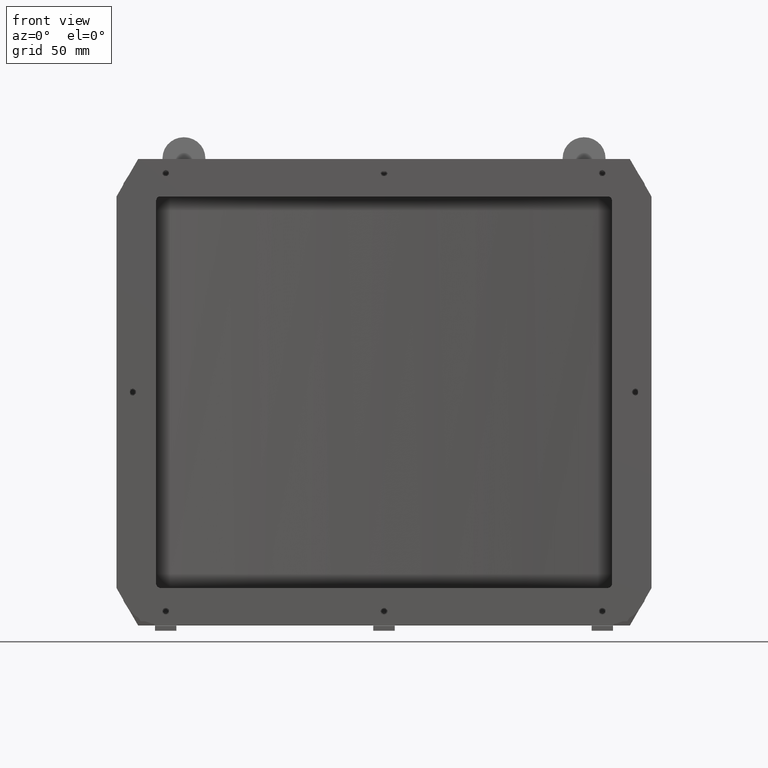
[diagram: clean part render]
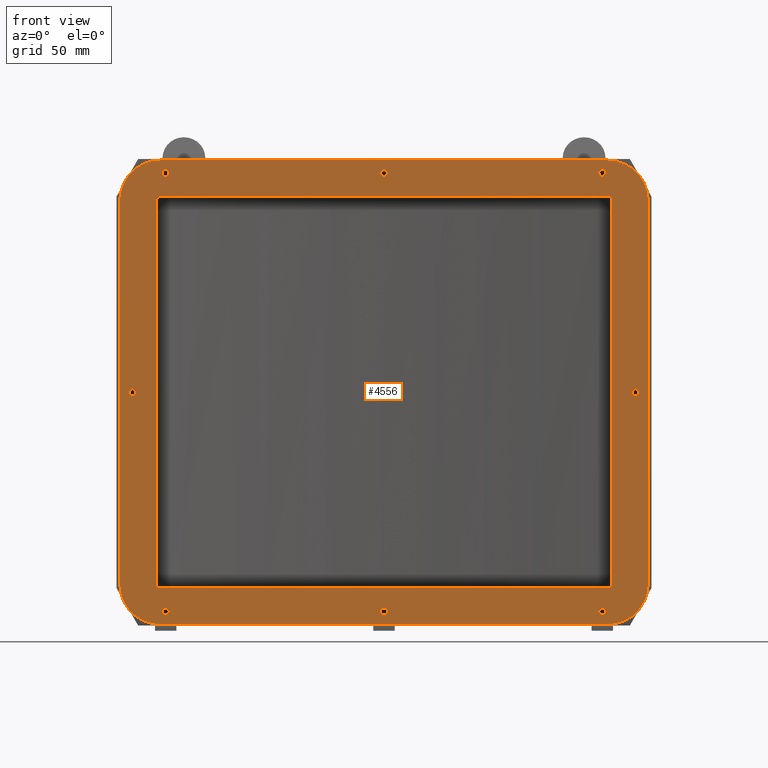
[diagram: same view with one face highlighted and labeled with its STEP entity id]
A machine part, front view. The second image highlights one B-rep face of the part: STEP entity #4556.
In plain terms, the highlighted planar face has unit normal (0, -1, 0).
Its self-contained STEP definition (entity closure, byte-faithful):
#36 = DIRECTION ( 'NONE',  ( 0.0000000000000000000, 0.0000000000000000000, -1.000000000000000000 ) ) ;
#37 = DIRECTION ( 'NONE',  ( 0.0000000000000000000, -1.000000000000000000, 0.0000000000000000000 ) ) ;
#38 = CARTESIAN_POINT ( 'NONE',  ( 101.9999999999999900, -6.000000000000000000, -102.5000000000000000 ) ) ;
#39 = AXIS2_PLACEMENT_3D ( 'NONE', #38, #37, #36 ) ;
#40 = CIRCLE ( 'NONE', #39, 1.600000000000004100 ) ;
#41 = DIRECTION ( 'NONE',  ( 0.0000000000000000000, 0.0000000000000000000, 1.000000000000000000 ) ) ;
#42 = DIRECTION ( 'NONE',  ( -0.0000000000000000000, -1.000000000000000000, -0.0000000000000000000 ) ) ;
#43 = CARTESIAN_POINT ( 'NONE',  ( 117.5000000000000000, -6.000000000000000000, 0.0000000000000000000 ) ) ;
#44 = AXIS2_PLACEMENT_3D ( 'NONE', #43, #42, #41 ) ;
#45 = CIRCLE ( 'NONE', #44, 1.600000000000005200 ) ;
#46 = DIRECTION ( 'NONE',  ( 0.0000000000000000000, 0.0000000000000000000, -1.000000000000000000 ) ) ;
#47 = DIRECTION ( 'NONE',  ( 0.0000000000000000000, -1.000000000000000000, 0.0000000000000000000 ) ) ;
#48 = CARTESIAN_POINT ( 'NONE',  ( -117.5000000000000000, -6.000000000000000000, -2.877824931482586600E-014 ) ) ;
#49 = AXIS2_PLACEMENT_3D ( 'NONE', #48, #47, #46 ) ;
#50 = DIRECTION ( 'NONE',  ( 0.0000000000000000000, -0.0000000000000000000, -1.000000000000000000 ) ) ;
#51 = DIRECTION ( 'NONE',  ( 0.0000000000000000000, -1.000000000000000000, 0.0000000000000000000 ) ) ;
#52 = CARTESIAN_POINT ( 'NONE',  ( -104.5000000000000100, -6.000000000000000000, -89.50000000000001400 ) ) ;
#53 = AXIS2_PLACEMENT_3D ( 'NONE', #52, #51, #50 ) ;
#54 = CIRCLE ( 'NONE', #49, 1.600000000000005200 ) ;
#55 = PLANE ( 'NONE',  #53 ) ;
#56 = FACE_BOUND ( 'NONE', #5145, .T. ) ;
#57 = FACE_OUTER_BOUND ( 'NONE', #5407, .T. ) ;
#58 = FACE_BOUND ( 'NONE', #5403, .T. ) ;
#59 = FACE_BOUND ( 'NONE', #5095, .T. ) ;
#60 = FACE_BOUND ( 'NONE', #5421, .T. ) ;
#61 = FACE_BOUND ( 'NONE', #5417, .T. ) ;
#62 = FACE_BOUND ( 'NONE', #5413, .T. ) ;
#63 = FACE_BOUND ( 'NONE', #4564, .T. ) ;
#64 = FACE_BOUND ( 'NONE', #4560, .T. ) ;
#65 = FACE_BOUND ( 'NONE', #5162, .T. ) ;
#148 = CARTESIAN_POINT ( 'NONE',  ( 104.5000000000000100, -6.000000000000000000, 108.5000000000000100 ) ) ;
#2892 = DIRECTION ( 'NONE',  ( -1.000000000000000000, -0.0000000000000000000, -0.0000000000000000000 ) ) ;
#2899 = CARTESIAN_POINT ( 'NONE',  ( 104.5000000000000100, -6.000000000000000000, -108.5000000000000100 ) ) ;
#2944 = VECTOR ( 'NONE', #2892, 1000.000000000000000 ) ;
#2945 = CARTESIAN_POINT ( 'NONE',  ( -104.5000000000000100, -6.000000000000000000, -108.5000000000000100 ) ) ;
#2946 = LINE ( 'NONE', #2945, #2944 ) ;
#3105 = CARTESIAN_POINT ( 'NONE',  ( 123.5000000000000100, -6.000000000000000000, -89.50000000000000000 ) ) ;
#3144 = CIRCLE ( 'NONE', #3179, 19.00000000000000400 ) ;
#3161 = DIRECTION ( 'NONE',  ( 0.0000000000000000000, 0.0000000000000000000, -1.000000000000000000 ) ) ;
#3162 = CARTESIAN_POINT ( 'NONE',  ( -104.5000000000000100, -6.000000000000000000, -108.5000000000000100 ) ) ;
#3165 = CARTESIAN_POINT ( 'NONE',  ( -104.5000000000000100, -6.000000000000000000, -89.50000000000001400 ) ) ;
#3179 = AXIS2_PLACEMENT_3D ( 'NONE', #3165, #3180, #3161 ) ;
#3180 = DIRECTION ( 'NONE',  ( -0.0000000000000000000, 1.000000000000000000, -0.0000000000000000000 ) ) ;
#3188 = CARTESIAN_POINT ( 'NONE',  ( -123.5000000000000100, -6.000000000000000000, -89.50000000000000000 ) ) ;
#4119 = EDGE_CURVE ( 'NONE', #4462, #4120, #6534, .T. ) ;
#4120 = VERTEX_POINT ( 'NONE', #6529 ) ;
#4131 = VERTEX_POINT ( 'NONE', #6425 ) ;
#4133 = EDGE_CURVE ( 'NONE', #4131, #4134, #6558, .T. ) ;
#4134 = VERTEX_POINT ( 'NONE', #6536 ) ;
#4135 = EDGE_CURVE ( 'NONE', #4172, #4136, #6535, .T. ) ;
#4136 = VERTEX_POINT ( 'NONE', #6554 ) ;
#4160 = EDGE_CURVE ( 'NONE', #4300, #4161, #6567, .T. ) ;
#4161 = VERTEX_POINT ( 'NONE', #6562 ) ;
#4172 = VERTEX_POINT ( 'NONE', #6590 ) ;
#4182 = VERTEX_POINT ( 'NONE', #6629 ) ;
#4184 = EDGE_CURVE ( 'NONE', #4182, #4185, #6628, .T. ) ;
#4185 = VERTEX_POINT ( 'NONE', #6623 ) ;
#4277 = VERTEX_POINT ( 'NONE', #6770 ) ;
#4279 = EDGE_CURVE ( 'NONE', #4277, #4280, #6769, .T. ) ;
#4280 = VERTEX_POINT ( 'NONE', #6822 ) ;
#4286 = VERTEX_POINT ( 'NONE', #6816 ) ;
#4288 = EDGE_CURVE ( 'NONE', #4286, #4289, #6851, .T. ) ;
#4289 = VERTEX_POINT ( 'NONE', #6846 ) ;
#4300 = VERTEX_POINT ( 'NONE', #6873 ) ;
#4367 = VERTEX_POINT ( 'NONE', #7115 ) ;
#4369 = EDGE_CURVE ( 'NONE', #4367, #4370, #7199, .T. ) ;
#4370 = VERTEX_POINT ( 'NONE', #7216 ) ;
#4462 = VERTEX_POINT ( 'NONE', #7191 ) ;
#4486 = VERTEX_POINT ( 'NONE', #148 ) ;
#4494 = VERTEX_POINT ( 'NONE', #8609 ) ;
#4496 = EDGE_CURVE ( 'NONE', #4494, #5396, #8615, .T. ) ;
#4556 = ADVANCED_FACE ( 'NONE', ( #65, #64, #63, #62, #61, #60, #59, #58, #57, #56 ), #55, .T. ) ;
#4557 = ORIENTED_EDGE ( 'NONE', *, *, #4558, .F. ) ;
#4558 = EDGE_CURVE ( 'NONE', #4289, #4286, #54, .T. ) ;
#4559 = ORIENTED_EDGE ( 'NONE', *, *, #4288, .F. ) ;
#4560 = EDGE_LOOP ( 'NONE', ( #4561, #4563 ) ) ;
#4561 = ORIENTED_EDGE ( 'NONE', *, *, #4562, .F. ) ;
#4562 = EDGE_CURVE ( 'NONE', #4161, #4300, #45, .T. ) ;
#4563 = ORIENTED_EDGE ( 'NONE', *, *, #4160, .F. ) ;
#4564 = EDGE_LOOP ( 'NONE', ( #4565, #4567 ) ) ;
#4565 = ORIENTED_EDGE ( 'NONE', *, *, #4566, .F. ) ;
#4566 = EDGE_CURVE ( 'NONE', #4136, #4172, #40, .T. ) ;
#4567 = ORIENTED_EDGE ( 'NONE', *, *, #4135, .F. ) ;
#4581 = VERTEX_POINT ( 'NONE', #2899 ) ;
#4616 = EDGE_CURVE ( 'NONE', #4581, #4711, #2946, .T. ) ;
#4677 = VERTEX_POINT ( 'NONE', #3105 ) ;
#4711 = VERTEX_POINT ( 'NONE', #3162 ) ;
#4713 = EDGE_CURVE ( 'NONE', #4711, #4714, #3144, .T. ) ;
#4714 = VERTEX_POINT ( 'NONE', #3188 ) ;
#5095 = EDGE_LOOP ( 'NONE', ( #5400, #5402 ) ) ;
#5143 = ORIENTED_EDGE ( 'NONE', *, *, #4496, .F. ) ;
#5144 = ORIENTED_EDGE ( 'NONE', *, *, #5160, .F. ) ;
#5145 = EDGE_LOOP ( 'NONE', ( #5371, #5375, #5378, #5193, #5196, #5199, #5202, #5205 ) ) ;
#5157 = ORIENTED_EDGE ( 'NONE', *, *, #5387, .F. ) ;
#5160 = EDGE_CURVE ( 'NONE', #4714, #4494, #7758, .T. ) ;
#5162 = EDGE_LOOP ( 'NONE', ( #4557, #4559 ) ) ;
#5164 = EDGE_CURVE ( 'NONE', #4677, #4581, #7754, .T. ) ;
#5172 = EDGE_CURVE ( 'NONE', #5177, #4677, #7798, .T. ) ;
#5177 = VERTEX_POINT ( 'NONE', #7790 ) ;
#5193 = ORIENTED_EDGE ( 'NONE', *, *, #5194, .T. ) ;
#5194 = EDGE_CURVE ( 'NONE', #5380, #5195, #7829, .T. ) ;
#5195 = VERTEX_POINT ( 'NONE', #7825 ) ;
#5196 = ORIENTED_EDGE ( 'NONE', *, *, #5197, .T. ) ;
#5197 = EDGE_CURVE ( 'NONE', #5195, #5198, #7824, .T. ) ;
#5198 = VERTEX_POINT ( 'NONE', #7819 ) ;
#5199 = ORIENTED_EDGE ( 'NONE', *, *, #5200, .T. ) ;
#5200 = EDGE_CURVE ( 'NONE', #5198, #5201, #7818, .T. ) ;
#5201 = VERTEX_POINT ( 'NONE', #7814 ) ;
#5202 = ORIENTED_EDGE ( 'NONE', *, *, #5203, .T. ) ;
#5203 = EDGE_CURVE ( 'NONE', #5201, #5204, #7813, .T. ) ;
#5204 = VERTEX_POINT ( 'NONE', #7875 ) ;
#5205 = ORIENTED_EDGE ( 'NONE', *, *, #5206, .T. ) ;
#5206 = EDGE_CURVE ( 'NONE', #5204, #5373, #7874, .T. ) ;
#5357 = ORIENTED_EDGE ( 'NONE', *, *, #5398, .F. ) ;
#5371 = ORIENTED_EDGE ( 'NONE', *, *, #5372, .T. ) ;
#5372 = EDGE_CURVE ( 'NONE', #5373, #5374, #5617, .T. ) ;
#5373 = VERTEX_POINT ( 'NONE', #5612 ) ;
#5374 = VERTEX_POINT ( 'NONE', #5611 ) ;
#5375 = ORIENTED_EDGE ( 'NONE', *, *, #5376, .T. ) ;
#5376 = EDGE_CURVE ( 'NONE', #5374, #5377, #5672, .T. ) ;
#5377 = VERTEX_POINT ( 'NONE', #5668 ) ;
#5378 = ORIENTED_EDGE ( 'NONE', *, *, #5379, .T. ) ;
#5379 = EDGE_CURVE ( 'NONE', #5377, #5380, #5667, .T. ) ;
#5380 = VERTEX_POINT ( 'NONE', #5662 ) ;
#5387 = EDGE_CURVE ( 'NONE', #4486, #5177, #5649, .T. ) ;
#5396 = VERTEX_POINT ( 'NONE', #5691 ) ;
#5398 = EDGE_CURVE ( 'NONE', #5396, #4486, #5690, .T. ) ;
#5400 = ORIENTED_EDGE ( 'NONE', *, *, #5401, .F. ) ;
#5401 = EDGE_CURVE ( 'NONE', #4134, #4131, #5686, .T. ) ;
#5402 = ORIENTED_EDGE ( 'NONE', *, *, #4133, .F. ) ;
#5403 = EDGE_LOOP ( 'NONE', ( #5404, #5406 ) ) ;
#5404 = ORIENTED_EDGE ( 'NONE', *, *, #5405, .F. ) ;
#5405 = EDGE_CURVE ( 'NONE', #4120, #4462, #5681, .T. ) ;
#5406 = ORIENTED_EDGE ( 'NONE', *, *, #4119, .F. ) ;
#5407 = EDGE_LOOP ( 'NONE', ( #5408, #5409, #5410, #5411, #5157, #5357, #5143, #5144 ) ) ;
#5408 = ORIENTED_EDGE ( 'NONE', *, *, #4713, .F. ) ;
#5409 = ORIENTED_EDGE ( 'NONE', *, *, #4616, .F. ) ;
#5410 = ORIENTED_EDGE ( 'NONE', *, *, #5164, .F. ) ;
#5411 = ORIENTED_EDGE ( 'NONE', *, *, #5172, .F. ) ;
#5413 = EDGE_LOOP ( 'NONE', ( #5414, #5416 ) ) ;
#5414 = ORIENTED_EDGE ( 'NONE', *, *, #5415, .F. ) ;
#5415 = EDGE_CURVE ( 'NONE', #4370, #4367, #5734, .T. ) ;
#5416 = ORIENTED_EDGE ( 'NONE', *, *, #4369, .F. ) ;
#5417 = EDGE_LOOP ( 'NONE', ( #5418, #5420 ) ) ;
#5418 = ORIENTED_EDGE ( 'NONE', *, *, #5419, .F. ) ;
#5419 = EDGE_CURVE ( 'NONE', #4185, #4182, #5729, .T. ) ;
#5420 = ORIENTED_EDGE ( 'NONE', *, *, #4184, .F. ) ;
#5421 = EDGE_LOOP ( 'NONE', ( #5422, #5424 ) ) ;
#5422 = ORIENTED_EDGE ( 'NONE', *, *, #5423, .F. ) ;
#5423 = EDGE_CURVE ( 'NONE', #4280, #4277, #5724, .T. ) ;
#5424 = ORIENTED_EDGE ( 'NONE', *, *, #4279, .F. ) ;
#5611 = CARTESIAN_POINT ( 'NONE',  ( -106.5000000000000100, -6.000000000000000000, -89.50000000000001400 ) ) ;
#5612 = CARTESIAN_POINT ( 'NONE',  ( -104.5000000000000100, -6.000000000000000000, -91.50000000000000000 ) ) ;
#5613 = DIRECTION ( 'NONE',  ( 0.0000000000000000000, 0.0000000000000000000, -1.000000000000000000 ) ) ;
#5614 = DIRECTION ( 'NONE',  ( -0.0000000000000000000, 1.000000000000000000, -0.0000000000000000000 ) ) ;
#5615 = CARTESIAN_POINT ( 'NONE',  ( -104.5000000000000100, -6.000000000000000000, -89.50000000000001400 ) ) ;
#5616 = AXIS2_PLACEMENT_3D ( 'NONE', #5615, #5614, #5613 ) ;
#5617 = CIRCLE ( 'NONE', #5616, 1.999999999999988000 ) ;
#5645 = DIRECTION ( 'NONE',  ( 0.0000000000000000000, 0.0000000000000000000, -1.000000000000000000 ) ) ;
#5646 = DIRECTION ( 'NONE',  ( -0.0000000000000000000, 1.000000000000000000, -0.0000000000000000000 ) ) ;
#5647 = CARTESIAN_POINT ( 'NONE',  ( 104.5000000000000100, -6.000000000000000000, 89.50000000000001400 ) ) ;
#5648 = AXIS2_PLACEMENT_3D ( 'NONE', #5647, #5646, #5645 ) ;
#5649 = CIRCLE ( 'NONE', #5648, 19.00000000000000400 ) ;
#5662 = CARTESIAN_POINT ( 'NONE',  ( -104.5000000000000100, -6.000000000000000000, 91.50000000000001400 ) ) ;
#5663 = DIRECTION ( 'NONE',  ( 0.0000000000000000000, 0.0000000000000000000, -1.000000000000000000 ) ) ;
#5664 = DIRECTION ( 'NONE',  ( -0.0000000000000000000, 1.000000000000000000, -0.0000000000000000000 ) ) ;
#5665 = CARTESIAN_POINT ( 'NONE',  ( -104.5000000000000100, -6.000000000000000000, 89.50000000000001400 ) ) ;
#5666 = AXIS2_PLACEMENT_3D ( 'NONE', #5665, #5664, #5663 ) ;
#5667 = CIRCLE ( 'NONE', #5666, 2.000000000000001800 ) ;
#5668 = CARTESIAN_POINT ( 'NONE',  ( -106.5000000000000100, -6.000000000000000000, 89.50000000000001400 ) ) ;
#5669 = DIRECTION ( 'NONE',  ( 0.0000000000000000000, 0.0000000000000000000, 1.000000000000000000 ) ) ;
#5670 = VECTOR ( 'NONE', #5669, 1000.000000000000000 ) ;
#5671 = CARTESIAN_POINT ( 'NONE',  ( -106.5000000000000100, -6.000000000000000000, -89.50000000000001400 ) ) ;
#5672 = LINE ( 'NONE', #5671, #5670 ) ;
#5677 = DIRECTION ( 'NONE',  ( 0.0000000000000000000, 0.0000000000000000000, -1.000000000000000000 ) ) ;
#5678 = DIRECTION ( 'NONE',  ( 0.0000000000000000000, -1.000000000000000000, 0.0000000000000000000 ) ) ;
#5679 = CARTESIAN_POINT ( 'NONE',  ( 1.255221512667936500E-014, -6.000000000000000000, -102.5000000000000000 ) ) ;
#5680 = AXIS2_PLACEMENT_3D ( 'NONE', #5679, #5678, #5677 ) ;
#5681 = CIRCLE ( 'NONE', #5680, 1.600000000000004100 ) ;
#5682 = DIRECTION ( 'NONE',  ( 0.0000000000000000000, 0.0000000000000000000, 1.000000000000000000 ) ) ;
#5683 = DIRECTION ( 'NONE',  ( -0.0000000000000000000, -1.000000000000000000, -0.0000000000000000000 ) ) ;
#5684 = CARTESIAN_POINT ( 'NONE',  ( 1.255221512667936500E-014, -6.000000000000000000, 102.5000000000000000 ) ) ;
#5685 = AXIS2_PLACEMENT_3D ( 'NONE', #5684, #5683, #5682 ) ;
#5686 = CIRCLE ( 'NONE', #5685, 1.600000000000004100 ) ;
#5687 = DIRECTION ( 'NONE',  ( 1.000000000000000000, 0.0000000000000000000, 0.0000000000000000000 ) ) ;
#5688 = VECTOR ( 'NONE', #5687, 1000.000000000000000 ) ;
#5689 = CARTESIAN_POINT ( 'NONE',  ( -104.5000000000000100, -6.000000000000000000, 108.5000000000000100 ) ) ;
#5690 = LINE ( 'NONE', #5689, #5688 ) ;
#5691 = CARTESIAN_POINT ( 'NONE',  ( -104.5000000000000100, -6.000000000000000000, 108.5000000000000100 ) ) ;
#5720 = DIRECTION ( 'NONE',  ( 0.0000000000000000000, 0.0000000000000000000, 1.000000000000000000 ) ) ;
#5721 = DIRECTION ( 'NONE',  ( -0.0000000000000000000, -1.000000000000000000, -0.0000000000000000000 ) ) ;
#5722 = CARTESIAN_POINT ( 'NONE',  ( 101.9999999999999900, -6.000000000000000000, 102.5000000000000000 ) ) ;
#5723 = AXIS2_PLACEMENT_3D ( 'NONE', #5722, #5721, #5720 ) ;
#5724 = CIRCLE ( 'NONE', #5723, 1.600000000000004100 ) ;
#5725 = DIRECTION ( 'NONE',  ( 0.0000000000000000000, 0.0000000000000000000, 1.000000000000000000 ) ) ;
#5726 = DIRECTION ( 'NONE',  ( -0.0000000000000000000, -1.000000000000000000, -0.0000000000000000000 ) ) ;
#5727 = CARTESIAN_POINT ( 'NONE',  ( -102.0000000000000100, -6.000000000000000000, 102.4999999999999700 ) ) ;
#5728 = AXIS2_PLACEMENT_3D ( 'NONE', #5727, #5726, #5725 ) ;
#5729 = CIRCLE ( 'NONE', #5728, 1.600000000000004100 ) ;
#5730 = DIRECTION ( 'NONE',  ( 0.0000000000000000000, 0.0000000000000000000, -1.000000000000000000 ) ) ;
#5731 = DIRECTION ( 'NONE',  ( 0.0000000000000000000, -1.000000000000000000, 0.0000000000000000000 ) ) ;
#5732 = CARTESIAN_POINT ( 'NONE',  ( -102.0000000000000100, -6.000000000000000000, -102.4999999999999700 ) ) ;
#5733 = AXIS2_PLACEMENT_3D ( 'NONE', #5732, #5731, #5730 ) ;
#5734 = CIRCLE ( 'NONE', #5733, 1.600000000000004100 ) ;
#6425 = CARTESIAN_POINT ( 'NONE',  ( 1.274815214329094500E-014, -6.000000000000000000, 104.0999999999999900 ) ) ;
#6529 = CARTESIAN_POINT ( 'NONE',  ( 1.255221512667936500E-014, -6.000000000000000000, -104.0999999999999900 ) ) ;
#6530 = DIRECTION ( 'NONE',  ( 0.0000000000000000000, 0.0000000000000000000, -1.000000000000000000 ) ) ;
#6531 = DIRECTION ( 'NONE',  ( 0.0000000000000000000, -1.000000000000000000, 0.0000000000000000000 ) ) ;
#6532 = CARTESIAN_POINT ( 'NONE',  ( 1.255221512667936500E-014, -6.000000000000000000, -102.5000000000000000 ) ) ;
#6533 = AXIS2_PLACEMENT_3D ( 'NONE', #6532, #6531, #6530 ) ;
#6534 = CIRCLE ( 'NONE', #6533, 1.600000000000004100 ) ;
#6535 = CIRCLE ( 'NONE', #6553, 1.600000000000004100 ) ;
#6536 = CARTESIAN_POINT ( 'NONE',  ( 1.255221512667936500E-014, -6.000000000000000000, 100.8999999999999900 ) ) ;
#6551 = DIRECTION ( 'NONE',  ( 0.0000000000000000000, -1.000000000000000000, 0.0000000000000000000 ) ) ;
#6552 = CARTESIAN_POINT ( 'NONE',  ( 101.9999999999999900, -6.000000000000000000, -102.5000000000000000 ) ) ;
#6553 = AXIS2_PLACEMENT_3D ( 'NONE', #6552, #6551, #6555 ) ;
#6554 = CARTESIAN_POINT ( 'NONE',  ( 101.9999999999999900, -6.000000000000000000, -104.0999999999999900 ) ) ;
#6555 = DIRECTION ( 'NONE',  ( 0.0000000000000000000, 0.0000000000000000000, -1.000000000000000000 ) ) ;
#6556 = DIRECTION ( 'NONE',  ( -0.0000000000000000000, -1.000000000000000000, -0.0000000000000000000 ) ) ;
#6557 = CARTESIAN_POINT ( 'NONE',  ( 1.255221512667936500E-014, -6.000000000000000000, 102.5000000000000000 ) ) ;
#6558 = CIRCLE ( 'NONE', #6649, 1.600000000000004100 ) ;
#6562 = CARTESIAN_POINT ( 'NONE',  ( 117.5000000000000000, -6.000000000000000000, -1.600000000000005200 ) ) ;
#6563 = DIRECTION ( 'NONE',  ( 0.0000000000000000000, 0.0000000000000000000, 1.000000000000000000 ) ) ;
#6564 = DIRECTION ( 'NONE',  ( -0.0000000000000000000, -1.000000000000000000, -0.0000000000000000000 ) ) ;
#6565 = CARTESIAN_POINT ( 'NONE',  ( 117.5000000000000000, -6.000000000000000000, 0.0000000000000000000 ) ) ;
#6566 = AXIS2_PLACEMENT_3D ( 'NONE', #6565, #6564, #6563 ) ;
#6567 = CIRCLE ( 'NONE', #6566, 1.600000000000005200 ) ;
#6590 = CARTESIAN_POINT ( 'NONE',  ( 101.9999999999999900, -6.000000000000000000, -100.8999999999999900 ) ) ;
#6623 = CARTESIAN_POINT ( 'NONE',  ( -102.0000000000000100, -6.000000000000000000, 100.8999999999999600 ) ) ;
#6624 = DIRECTION ( 'NONE',  ( 0.0000000000000000000, 0.0000000000000000000, 1.000000000000000000 ) ) ;
#6625 = DIRECTION ( 'NONE',  ( -0.0000000000000000000, -1.000000000000000000, -0.0000000000000000000 ) ) ;
#6626 = CARTESIAN_POINT ( 'NONE',  ( -102.0000000000000100, -6.000000000000000000, 102.4999999999999700 ) ) ;
#6627 = AXIS2_PLACEMENT_3D ( 'NONE', #6626, #6625, #6624 ) ;
#6628 = CIRCLE ( 'NONE', #6627, 1.600000000000004100 ) ;
#6629 = CARTESIAN_POINT ( 'NONE',  ( -102.0000000000000100, -6.000000000000000000, 104.0999999999999700 ) ) ;
#6649 = AXIS2_PLACEMENT_3D ( 'NONE', #6557, #6556, #6662 ) ;
#6662 = DIRECTION ( 'NONE',  ( 0.0000000000000000000, 0.0000000000000000000, 1.000000000000000000 ) ) ;
#6766 = DIRECTION ( 'NONE',  ( -0.0000000000000000000, -1.000000000000000000, -0.0000000000000000000 ) ) ;
#6767 = CARTESIAN_POINT ( 'NONE',  ( 101.9999999999999900, -6.000000000000000000, 102.5000000000000000 ) ) ;
#6768 = AXIS2_PLACEMENT_3D ( 'NONE', #6767, #6766, #6823 ) ;
#6769 = CIRCLE ( 'NONE', #6768, 1.600000000000004100 ) ;
#6770 = CARTESIAN_POINT ( 'NONE',  ( 101.9999999999999900, -6.000000000000000000, 104.0999999999999900 ) ) ;
#6816 = CARTESIAN_POINT ( 'NONE',  ( -117.5000000000000000, -6.000000000000000000, 1.599999999999976600 ) ) ;
#6822 = CARTESIAN_POINT ( 'NONE',  ( 101.9999999999999900, -6.000000000000000000, 100.8999999999999900 ) ) ;
#6823 = DIRECTION ( 'NONE',  ( 0.0000000000000000000, 0.0000000000000000000, 1.000000000000000000 ) ) ;
#6846 = CARTESIAN_POINT ( 'NONE',  ( -117.5000000000000000, -6.000000000000000000, -1.600000000000034100 ) ) ;
#6847 = DIRECTION ( 'NONE',  ( 0.0000000000000000000, 0.0000000000000000000, -1.000000000000000000 ) ) ;
#6848 = DIRECTION ( 'NONE',  ( 0.0000000000000000000, -1.000000000000000000, 0.0000000000000000000 ) ) ;
#6849 = CARTESIAN_POINT ( 'NONE',  ( -117.5000000000000000, -6.000000000000000000, -2.877824931482586600E-014 ) ) ;
#6850 = AXIS2_PLACEMENT_3D ( 'NONE', #6849, #6848, #6847 ) ;
#6851 = CIRCLE ( 'NONE', #6850, 1.600000000000005200 ) ;
#6873 = CARTESIAN_POINT ( 'NONE',  ( 117.5000000000000000, -6.000000000000000000, 1.600000000000005200 ) ) ;
#7115 = CARTESIAN_POINT ( 'NONE',  ( -102.0000000000000100, -6.000000000000000000, -100.8999999999999600 ) ) ;
#7191 = CARTESIAN_POINT ( 'NONE',  ( 1.274815214329094500E-014, -6.000000000000000000, -100.8999999999999900 ) ) ;
#7199 = CIRCLE ( 'NONE', #7244, 1.600000000000004100 ) ;
#7216 = CARTESIAN_POINT ( 'NONE',  ( -102.0000000000000100, -6.000000000000000000, -104.0999999999999700 ) ) ;
#7217 = DIRECTION ( 'NONE',  ( 0.0000000000000000000, 0.0000000000000000000, -1.000000000000000000 ) ) ;
#7218 = DIRECTION ( 'NONE',  ( 0.0000000000000000000, -1.000000000000000000, 0.0000000000000000000 ) ) ;
#7243 = CARTESIAN_POINT ( 'NONE',  ( -102.0000000000000100, -6.000000000000000000, -102.4999999999999700 ) ) ;
#7244 = AXIS2_PLACEMENT_3D ( 'NONE', #7243, #7218, #7217 ) ;
#7751 = DIRECTION ( 'NONE',  ( -0.0000000000000000000, 1.000000000000000000, -0.0000000000000000000 ) ) ;
#7752 = CARTESIAN_POINT ( 'NONE',  ( 104.5000000000000100, -6.000000000000000000, -89.50000000000001400 ) ) ;
#7753 = AXIS2_PLACEMENT_3D ( 'NONE', #7752, #7751, #7811 ) ;
#7754 = CIRCLE ( 'NONE', #7753, 19.00000000000000400 ) ;
#7755 = DIRECTION ( 'NONE',  ( 0.0000000000000000000, 0.0000000000000000000, 1.000000000000000000 ) ) ;
#7756 = VECTOR ( 'NONE', #7755, 1000.000000000000000 ) ;
#7757 = CARTESIAN_POINT ( 'NONE',  ( -123.5000000000000100, -6.000000000000000000, -89.50000000000000000 ) ) ;
#7758 = LINE ( 'NONE', #7757, #7756 ) ;
#7790 = CARTESIAN_POINT ( 'NONE',  ( 123.5000000000000100, -6.000000000000000000, 89.50000000000000000 ) ) ;
#7795 = DIRECTION ( 'NONE',  ( -0.0000000000000000000, -0.0000000000000000000, -1.000000000000000000 ) ) ;
#7796 = VECTOR ( 'NONE', #7795, 1000.000000000000000 ) ;
#7797 = CARTESIAN_POINT ( 'NONE',  ( 123.5000000000000100, -6.000000000000000000, -89.50000000000000000 ) ) ;
#7798 = LINE ( 'NONE', #7797, #7796 ) ;
#7811 = DIRECTION ( 'NONE',  ( 0.0000000000000000000, 0.0000000000000000000, -1.000000000000000000 ) ) ;
#7812 = AXIS2_PLACEMENT_3D ( 'NONE', #7878, #7877, #7876 ) ;
#7813 = CIRCLE ( 'NONE', #7812, 2.000000000000001800 ) ;
#7814 = CARTESIAN_POINT ( 'NONE',  ( 106.5000000000000100, -6.000000000000000000, -89.50000000000001400 ) ) ;
#7815 = DIRECTION ( 'NONE',  ( -0.0000000000000000000, -0.0000000000000000000, -1.000000000000000000 ) ) ;
#7816 = VECTOR ( 'NONE', #7815, 1000.000000000000000 ) ;
#7817 = CARTESIAN_POINT ( 'NONE',  ( 106.5000000000000100, -6.000000000000000000, -89.50000000000001400 ) ) ;
#7818 = LINE ( 'NONE', #7817, #7816 ) ;
#7819 = CARTESIAN_POINT ( 'NONE',  ( 106.5000000000000100, -6.000000000000000000, 89.50000000000000000 ) ) ;
#7820 = DIRECTION ( 'NONE',  ( 0.0000000000000000000, 0.0000000000000000000, -1.000000000000000000 ) ) ;
#7821 = DIRECTION ( 'NONE',  ( -0.0000000000000000000, 1.000000000000000000, -0.0000000000000000000 ) ) ;
#7822 = CARTESIAN_POINT ( 'NONE',  ( 104.5000000000000100, -6.000000000000000000, 89.50000000000001400 ) ) ;
#7823 = AXIS2_PLACEMENT_3D ( 'NONE', #7822, #7821, #7820 ) ;
#7824 = CIRCLE ( 'NONE', #7823, 1.999999999999988000 ) ;
#7825 = CARTESIAN_POINT ( 'NONE',  ( 104.5000000000000100, -6.000000000000000000, 91.50000000000000000 ) ) ;
#7826 = DIRECTION ( 'NONE',  ( 1.000000000000000000, 0.0000000000000000000, -6.640089860198304800E-017 ) ) ;
#7827 = VECTOR ( 'NONE', #7826, 1000.000000000000000 ) ;
#7828 = CARTESIAN_POINT ( 'NONE',  ( -104.5000000000000100, -6.000000000000000000, 91.50000000000001400 ) ) ;
#7829 = LINE ( 'NONE', #7828, #7827 ) ;
#7871 = DIRECTION ( 'NONE',  ( -1.000000000000000000, -0.0000000000000000000, 6.640089860198304800E-017 ) ) ;
#7872 = VECTOR ( 'NONE', #7871, 1000.000000000000000 ) ;
#7873 = CARTESIAN_POINT ( 'NONE',  ( -104.5000000000000100, -6.000000000000000000, -91.50000000000000000 ) ) ;
#7874 = LINE ( 'NONE', #7873, #7872 ) ;
#7875 = CARTESIAN_POINT ( 'NONE',  ( 104.5000000000000100, -6.000000000000000000, -91.50000000000001400 ) ) ;
#7876 = DIRECTION ( 'NONE',  ( 0.0000000000000000000, 0.0000000000000000000, -1.000000000000000000 ) ) ;
#7877 = DIRECTION ( 'NONE',  ( -0.0000000000000000000, 1.000000000000000000, -0.0000000000000000000 ) ) ;
#7878 = CARTESIAN_POINT ( 'NONE',  ( 104.5000000000000100, -6.000000000000000000, -89.50000000000001400 ) ) ;
#8609 = CARTESIAN_POINT ( 'NONE',  ( -123.5000000000000100, -6.000000000000000000, 89.50000000000000000 ) ) ;
#8611 = DIRECTION ( 'NONE',  ( 0.0000000000000000000, 0.0000000000000000000, -1.000000000000000000 ) ) ;
#8612 = DIRECTION ( 'NONE',  ( -0.0000000000000000000, 1.000000000000000000, -0.0000000000000000000 ) ) ;
#8613 = CARTESIAN_POINT ( 'NONE',  ( -104.5000000000000100, -6.000000000000000000, 89.50000000000001400 ) ) ;
#8614 = AXIS2_PLACEMENT_3D ( 'NONE', #8613, #8612, #8611 ) ;
#8615 = CIRCLE ( 'NONE', #8614, 19.00000000000000400 ) ;